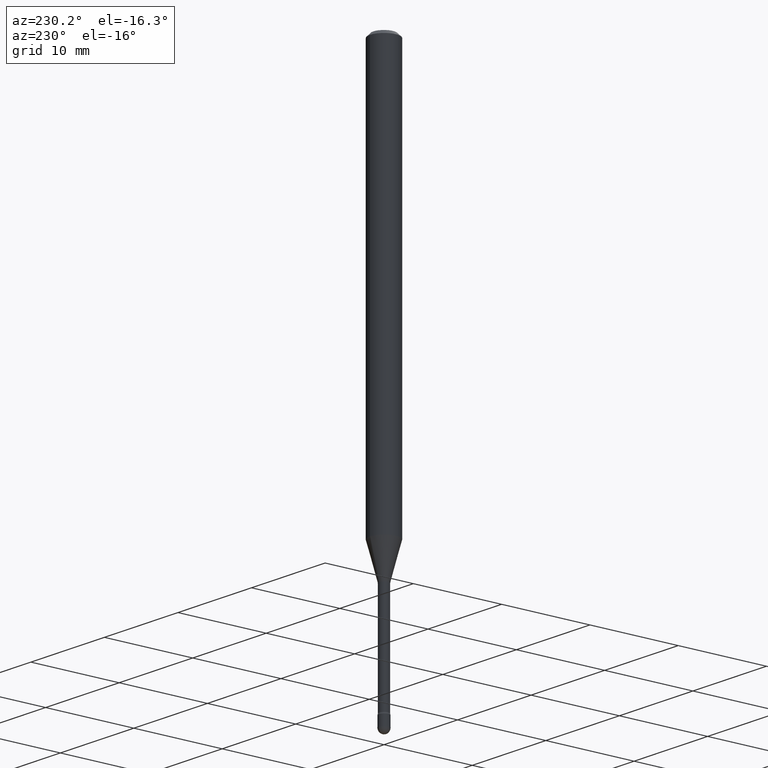
[diagram: clean part render]
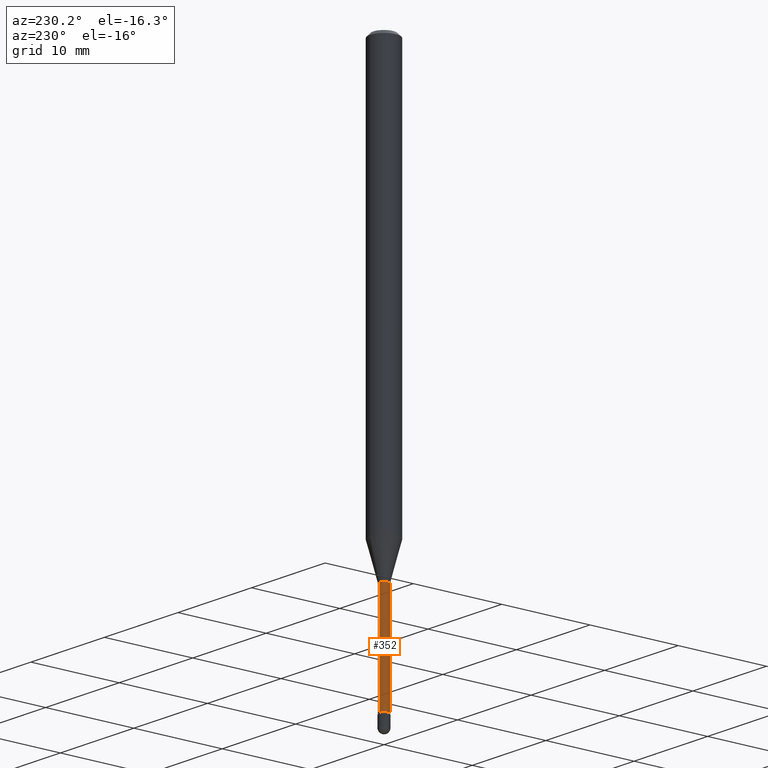
[diagram: same view with one face highlighted and labeled with its STEP entity id]
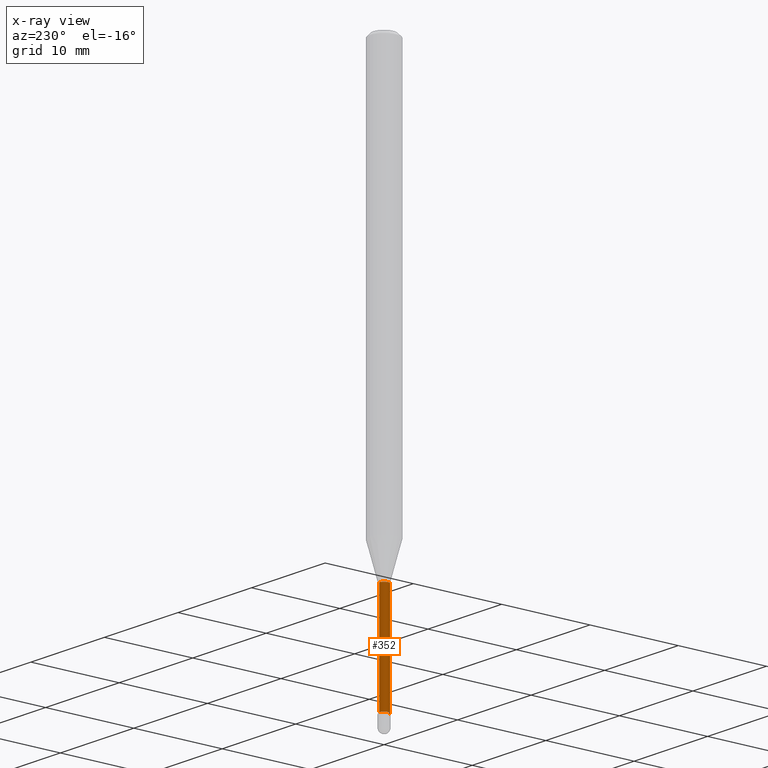
[diagram: x-ray of the same camera — body ghosted, the highlighted face saturated]
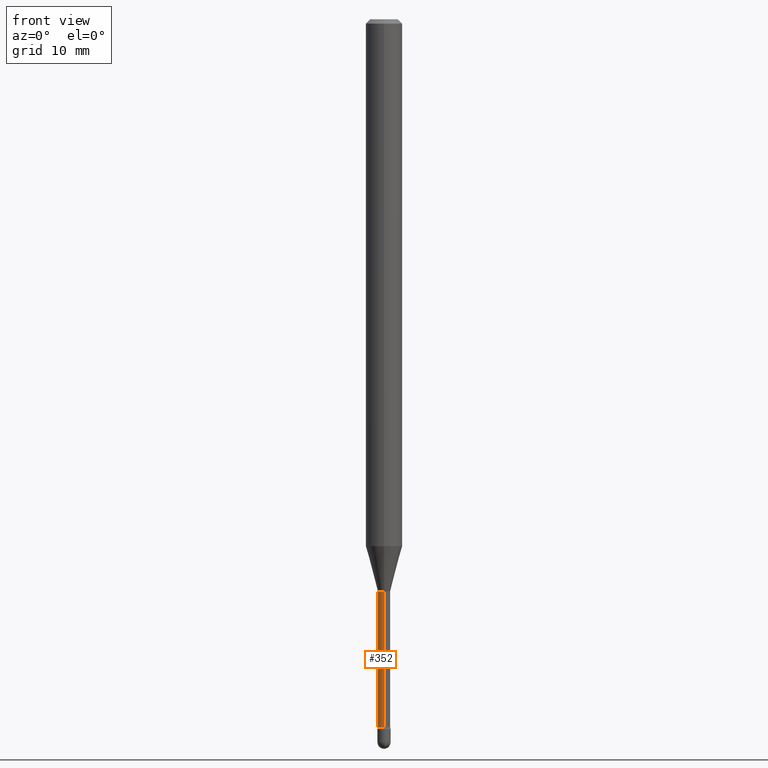
[diagram: same view with one face highlighted and labeled with its STEP entity id]
A machine part, auxiliary view. The second image highlights one B-rep face of the part: STEP entity #352.
The next image is the same camera in x-ray: the body ghosted, the highlighted face saturated — about 0% of this face is hidden behind the body in this view.
A second angle (front view) of the same face is appended — the face is thin or edge-on in the first view.
In plain terms, the highlighted cylindrical surface (edge-blend (fillet) strip) has radius 0.5372 mm, axis along (-0, 0, 1).
Its self-contained STEP definition (entity closure, byte-faithful):
#37 = DIRECTION ( 'NONE',  ( -2.445426571026095552E-29, 3.491541821994768116E-15, 1.000000000000000000 ) ) ;
#45 = LINE ( 'NONE', #125, #94 ) ;
#47 = CIRCLE ( 'NONE', #116, 0.02115000000000000560 ) ;
#50 = ORIENTED_EDGE ( 'NONE', *, *, #433, .F. ) ;
#60 = CYLINDRICAL_SURFACE ( 'NONE', #348, 0.02115000000000002642 ) ;
#91 = EDGE_CURVE ( 'NONE', #369, #378, #47, .T. ) ;
#94 = VECTOR ( 'NONE', #37, 39.37007874015748143 ) ;
#115 = CARTESIAN_POINT ( 'NONE',  ( 4.797865276947280430E-29, -6.850317024129193206E-15, -1.961974787463811154 ) ) ;
#116 = AXIS2_PLACEMENT_3D ( 'NONE', #115, #446, #240 ) ;
#125 = CARTESIAN_POINT ( 'NONE',  ( 1.502797886132613524E-16, 0.02115000000000002642, 4.042272893560565981E-16 ) ) ;
#144 = VERTEX_POINT ( 'NONE', #171 ) ;
#171 = CARTESIAN_POINT ( 'NONE',  ( 1.550759520797014538E-16, 0.02114999999999158178, -2.425780876267511932 ) ) ;
#181 = CIRCLE ( 'NONE', #285, 0.02115000000000005070 ) ;
#232 = VECTOR ( 'NONE', #537, 39.37007874015748143 ) ;
#234 = DIRECTION ( 'NONE',  ( -6.982962677686266711E-15, -1.000000000000000000, 3.491541821994766539E-15 ) ) ;
#240 = DIRECTION ( 'NONE',  ( -6.982962677686265133E-15, -1.000000000000000000, 0.000000000000000000 ) ) ;
#243 = CARTESIAN_POINT ( 'NONE',  ( -1.476896606330055594E-16, -0.02115000000000851962, -2.425780876267511932 ) ) ;
#275 = EDGE_CURVE ( 'NONE', #427, #378, #361, .T. ) ;
#276 = CARTESIAN_POINT ( 'NONE',  ( 1.502797886133206648E-16, 0.02114999999999315344, -1.961974787463811154 ) ) ;
#282 = EDGE_LOOP ( 'NONE', ( #50, #350, #459, #289 ) ) ;
#285 = AXIS2_PLACEMENT_3D ( 'NONE', #376, #298, #553 ) ;
#289 = ORIENTED_EDGE ( 'NONE', *, *, #91, .F. ) ;
#298 = DIRECTION ( 'NONE',  ( -2.445426571026095552E-29, 3.491541821994768116E-15, 1.000000000000000000 ) ) ;
#309 = CARTESIAN_POINT ( 'NONE',  ( -1.476896606330165788E-16, -0.02115000000000685429, -1.961974787463811154 ) ) ;
#348 = AXIS2_PLACEMENT_3D ( 'NONE', #355, #399, #234 ) ;
#350 = ORIENTED_EDGE ( 'NONE', *, *, #475, .T. ) ;
#352 = ADVANCED_FACE ( 'NONE', ( #536 ), #60, .T. ) ;
#355 = CARTESIAN_POINT ( 'NONE',  ( -1.169113584055446105E-44, 1.669184350826100908E-30, 4.780733988912460139E-16 ) ) ;
#361 = LINE ( 'NONE', #363, #232 ) ;
#363 = CARTESIAN_POINT ( 'NONE',  ( -1.476896606330647239E-16, -0.02115000000000002642, 5.519195084264354791E-16 ) ) ;
#369 = VERTEX_POINT ( 'NONE', #276 ) ;
#376 = CARTESIAN_POINT ( 'NONE',  ( 5.932069010311539721E-29, -8.469715380483133071E-15, -2.425780876267511932 ) ) ;
#378 = VERTEX_POINT ( 'NONE', #309 ) ;
#399 = DIRECTION ( 'NONE',  ( -2.445426571026095552E-29, 3.491541821994768116E-15, 1.000000000000000000 ) ) ;
#427 = VERTEX_POINT ( 'NONE', #243 ) ;
#433 = EDGE_CURVE ( 'NONE', #144, #369, #45, .T. ) ;
#446 = DIRECTION ( 'NONE',  ( -2.445426571026095552E-29, 3.491541821994768116E-15, 1.000000000000000000 ) ) ;
#459 = ORIENTED_EDGE ( 'NONE', *, *, #275, .T. ) ;
#475 = EDGE_CURVE ( 'NONE', #144, #427, #181, .T. ) ;
#536 = FACE_OUTER_BOUND ( 'NONE', #282, .T. ) ;
#537 = DIRECTION ( 'NONE',  ( -2.445426571026095552E-29, 3.491541821994768116E-15, 1.000000000000000000 ) ) ;
#553 = DIRECTION ( 'NONE',  ( -6.982962677686266711E-15, -1.000000000000000000, 0.000000000000000000 ) ) ;